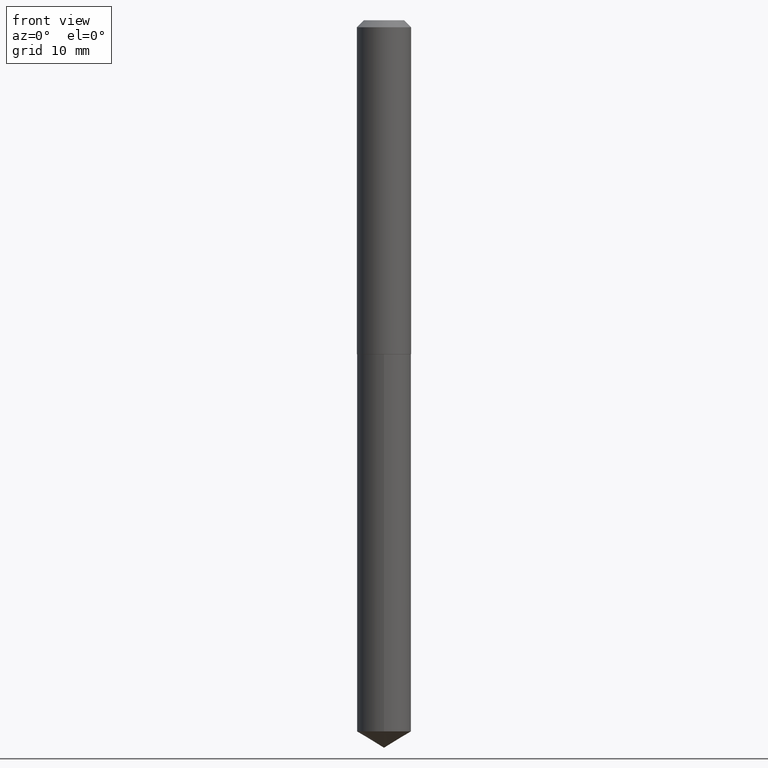
[diagram: clean part render]
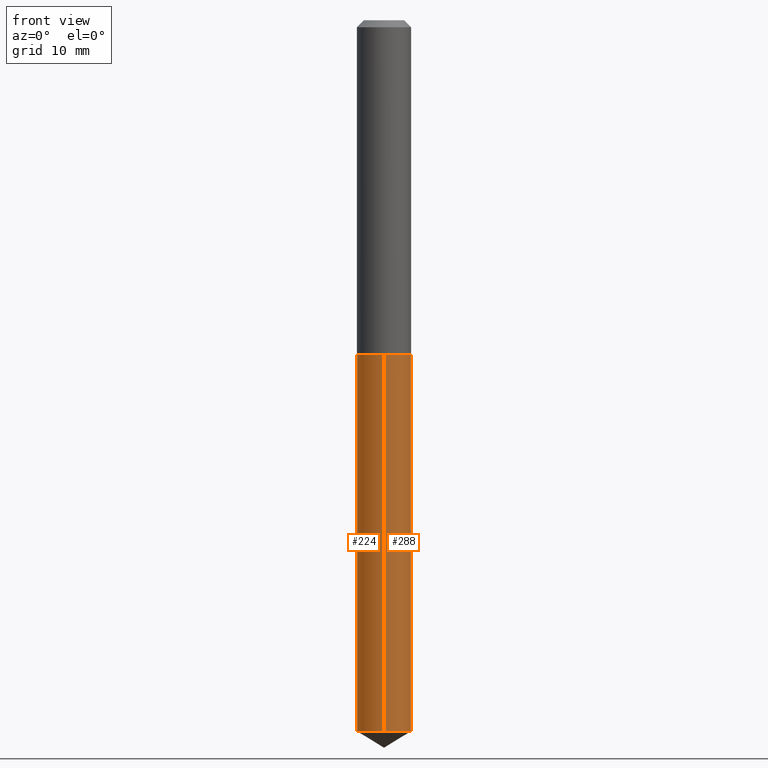
[diagram: same view with one multi-face feature highlighted, each face labeled with its STEP entity id]
A machine part, front view. The highlighted faces form ONE feature: a constant-radius fillet chain: 2 tangent blend faces with common blend radius 3.0734 mm. The faces share edges in the B-rep.
Their STEP definitions:
[1] entity #224 (Cylinder):
#4 = DIRECTION ( 'NONE',  ( -2.446036781530787415E-29, 3.490667965821024294E-15, 1.000000000000000000 ) ) ;
#8 = ORIENTED_EDGE ( 'NONE', *, *, #304, .T. ) ;
#28 = VERTEX_POINT ( 'NONE', #48 ) ;
#33 = CYLINDRICAL_SURFACE ( 'NONE', #334, 0.1210000000000000103 ) ;
#34 = EDGE_CURVE ( 'NONE', #56, #368, #125, .T. ) ;
#36 = CARTESIAN_POINT ( 'NONE',  ( 8.597567102697990011E-16, 0.1209999999999889081, -3.177295865097665928 ) ) ;
#44 = DIRECTION ( 'NONE',  ( -2.446036781530787695E-29, 3.490667965821024294E-15, 1.000000000000000000 ) ) ;
#48 = CARTESIAN_POINT ( 'NONE',  ( -8.449384839999604942E-16, -0.1210000000000111126, -3.177295865097664596 ) ) ;
#56 = VERTEX_POINT ( 'NONE', #88 ) ;
#62 = CARTESIAN_POINT ( 'NONE',  ( 3.648639458828223995E-29, -5.209290157553973331E-15, -1.491999999999999993 ) ) ;
#88 = CARTESIAN_POINT ( 'NONE',  ( 8.597567102697990997E-16, 0.1209999999999947923, -1.492000000000000659 ) ) ;
#92 = CARTESIAN_POINT ( 'NONE',  ( 8.597567102697576845E-16, 0.1209999999999947923, -1.492000000000000659 ) ) ;
#94 = DIRECTION ( 'NONE',  ( -2.446036781530787415E-29, 3.490667965821024294E-15, 1.000000000000000000 ) ) ;
#117 = CARTESIAN_POINT ( 'NONE',  ( 3.648639458828223995E-29, -5.209290157553973331E-15, -1.491999999999999993 ) ) ;
#119 = DIRECTION ( 'NONE',  ( -2.446036781530787695E-29, 3.490667965821024294E-15, 1.000000000000000000 ) ) ;
#121 = EDGE_CURVE ( 'NONE', #185, #56, #200, .T. ) ;
#125 = CIRCLE ( 'NONE', #302, 0.1210000000000000103 ) ;
#131 = ORIENTED_EDGE ( 'NONE', *, *, #269, .T. ) ;
#142 = ORIENTED_EDGE ( 'NONE', *, *, #121, .F. ) ;
#147 = DIRECTION ( 'NONE',  ( -6.982962677686264344E-15, -1.000000000000000000, 4.515451229197129137E-15 ) ) ;
#159 = CIRCLE ( 'NONE', #357, 0.1210000000000000103 ) ;
#172 = VECTOR ( 'NONE', #94, 39.37007874015748143 ) ;
#175 = DIRECTION ( 'NONE',  ( -6.982962677686264344E-15, -1.000000000000000000, 4.515451229197129137E-15 ) ) ;
#185 = VERTEX_POINT ( 'NONE', #36 ) ;
#187 = VECTOR ( 'NONE', #4, 39.37007874015748143 ) ;
#200 = LINE ( 'NONE', #92, #172 ) ;
#213 = CARTESIAN_POINT ( 'NONE',  ( -8.449384840000016136E-16, -0.1210000000000052145, -1.491999999999999549 ) ) ;
#224 = ADVANCED_FACE ( 'NONE', ( #388 ), #33, .T. ) ;
#242 = LINE ( 'NONE', #213, #187 ) ;
#249 = CARTESIAN_POINT ( 'NONE',  ( -8.449384840000016136E-16, -0.1210000000000052145, -1.491999999999999549 ) ) ;
#269 = EDGE_CURVE ( 'NONE', #28, #368, #242, .T. ) ;
#293 = DIRECTION ( 'NONE',  ( -2.446036781530787695E-29, 3.490667965821024294E-15, 1.000000000000000000 ) ) ;
#302 = AXIS2_PLACEMENT_3D ( 'NONE', #62, #119, #175 ) ;
#304 = EDGE_CURVE ( 'NONE', #185, #28, #159, .T. ) ;
#305 = CARTESIAN_POINT ( 'NONE',  ( 7.770935132618860075E-29, -1.109209844678102390E-14, -3.177295865097665484 ) ) ;
#334 = AXIS2_PLACEMENT_3D ( 'NONE', #117, #293, #147 ) ;
#339 = EDGE_LOOP ( 'NONE', ( #142, #8, #131, #375 ) ) ;
#357 = AXIS2_PLACEMENT_3D ( 'NONE', #305, #44, #381 ) ;
#368 = VERTEX_POINT ( 'NONE', #249 ) ;
#375 = ORIENTED_EDGE ( 'NONE', *, *, #34, .F. ) ;
#381 = DIRECTION ( 'NONE',  ( -6.982962677686264344E-15, -1.000000000000000000, 4.515451229197129137E-15 ) ) ;
#388 = FACE_OUTER_BOUND ( 'NONE', #339, .T. ) ;
[2] entity #288 (Cylinder):
#2 = CARTESIAN_POINT ( 'NONE',  ( 7.770935132618860075E-29, -1.109209844678102390E-14, -3.177295865097665484 ) ) ;
#4 = DIRECTION ( 'NONE',  ( -2.446036781530787415E-29, 3.490667965821024294E-15, 1.000000000000000000 ) ) ;
#28 = VERTEX_POINT ( 'NONE', #48 ) ;
#36 = CARTESIAN_POINT ( 'NONE',  ( 8.597567102697990011E-16, 0.1209999999999889081, -3.177295865097665928 ) ) ;
#48 = CARTESIAN_POINT ( 'NONE',  ( -8.449384839999604942E-16, -0.1210000000000111126, -3.177295865097664596 ) ) ;
#56 = VERTEX_POINT ( 'NONE', #88 ) ;
#68 = EDGE_LOOP ( 'NONE', ( #167, #382, #248, #338 ) ) ;
#88 = CARTESIAN_POINT ( 'NONE',  ( 8.597567102697990997E-16, 0.1209999999999947923, -1.492000000000000659 ) ) ;
#91 = CIRCLE ( 'NONE', #207, 0.1210000000000000103 ) ;
#92 = CARTESIAN_POINT ( 'NONE',  ( 8.597567102697576845E-16, 0.1209999999999947923, -1.492000000000000659 ) ) ;
#93 = DIRECTION ( 'NONE',  ( -6.982962677686264344E-15, -1.000000000000000000, 4.515451229197129137E-15 ) ) ;
#94 = DIRECTION ( 'NONE',  ( -2.446036781530787415E-29, 3.490667965821024294E-15, 1.000000000000000000 ) ) ;
#97 = DIRECTION ( 'NONE',  ( -6.982962677686264344E-15, -1.000000000000000000, 4.515451229197129137E-15 ) ) ;
#104 = DIRECTION ( 'NONE',  ( -2.446036781530787695E-29, 3.490667965821024294E-15, 1.000000000000000000 ) ) ;
#112 = CARTESIAN_POINT ( 'NONE',  ( 3.648639458828223995E-29, -5.209290157553973331E-15, -1.491999999999999993 ) ) ;
#121 = EDGE_CURVE ( 'NONE', #185, #56, #200, .T. ) ;
#145 = CIRCLE ( 'NONE', #202, 0.1210000000000000103 ) ;
#167 = ORIENTED_EDGE ( 'NONE', *, *, #203, .T. ) ;
#172 = VECTOR ( 'NONE', #94, 39.37007874015748143 ) ;
#177 = AXIS2_PLACEMENT_3D ( 'NONE', #179, #333, #97 ) ;
#179 = CARTESIAN_POINT ( 'NONE',  ( 3.648639458828223995E-29, -5.209290157553973331E-15, -1.491999999999999993 ) ) ;
#183 = CYLINDRICAL_SURFACE ( 'NONE', #177, 0.1210000000000000103 ) ;
#185 = VERTEX_POINT ( 'NONE', #36 ) ;
#187 = VECTOR ( 'NONE', #4, 39.37007874015748143 ) ;
#191 = DIRECTION ( 'NONE',  ( -6.982962677686264344E-15, -1.000000000000000000, 4.515451229197129137E-15 ) ) ;
#200 = LINE ( 'NONE', #92, #172 ) ;
#202 = AXIS2_PLACEMENT_3D ( 'NONE', #112, #104, #191 ) ;
#203 = EDGE_CURVE ( 'NONE', #28, #185, #91, .T. ) ;
#207 = AXIS2_PLACEMENT_3D ( 'NONE', #2, #360, #93 ) ;
#213 = CARTESIAN_POINT ( 'NONE',  ( -8.449384840000016136E-16, -0.1210000000000052145, -1.491999999999999549 ) ) ;
#242 = LINE ( 'NONE', #213, #187 ) ;
#248 = ORIENTED_EDGE ( 'NONE', *, *, #313, .F. ) ;
#249 = CARTESIAN_POINT ( 'NONE',  ( -8.449384840000016136E-16, -0.1210000000000052145, -1.491999999999999549 ) ) ;
#269 = EDGE_CURVE ( 'NONE', #28, #368, #242, .T. ) ;
#288 = ADVANCED_FACE ( 'NONE', ( #331 ), #183, .T. ) ;
#313 = EDGE_CURVE ( 'NONE', #368, #56, #145, .T. ) ;
#331 = FACE_OUTER_BOUND ( 'NONE', #68, .T. ) ;
#333 = DIRECTION ( 'NONE',  ( -2.446036781530787695E-29, 3.490667965821024294E-15, 1.000000000000000000 ) ) ;
#338 = ORIENTED_EDGE ( 'NONE', *, *, #269, .F. ) ;
#360 = DIRECTION ( 'NONE',  ( -2.446036781530787695E-29, 3.490667965821024294E-15, 1.000000000000000000 ) ) ;
#368 = VERTEX_POINT ( 'NONE', #249 ) ;
#382 = ORIENTED_EDGE ( 'NONE', *, *, #121, .T. ) ;